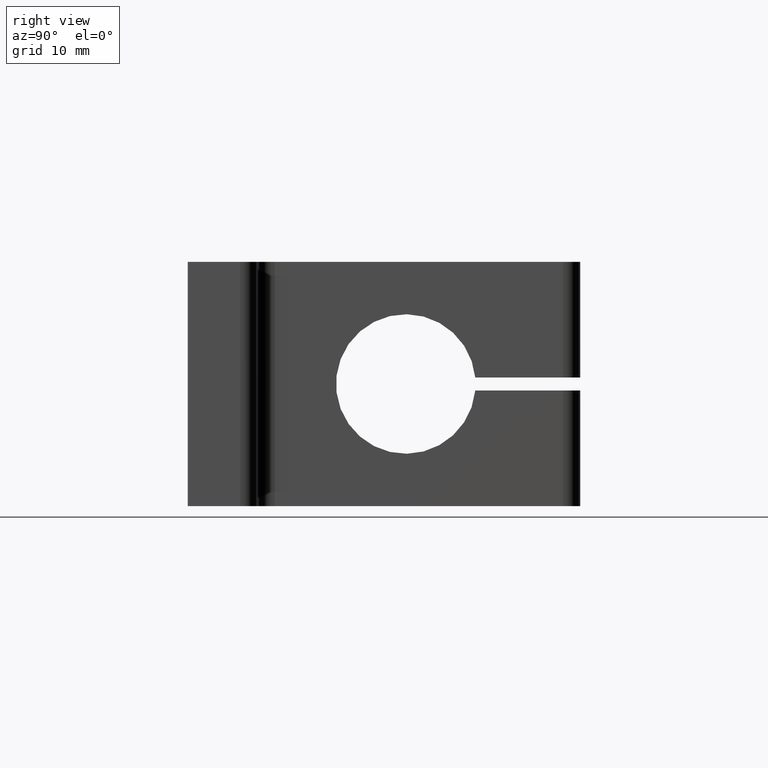
[diagram: clean part render]
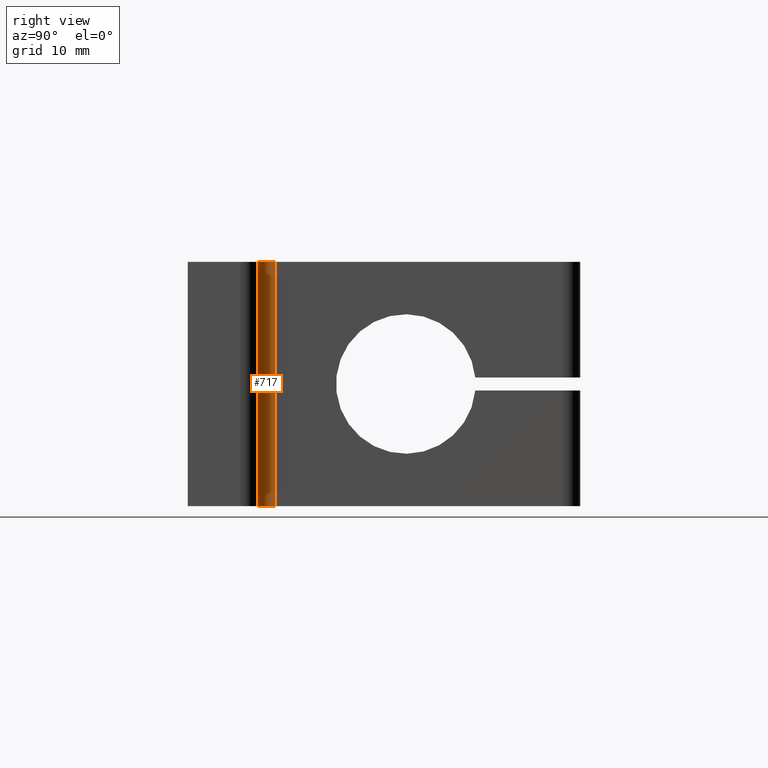
[diagram: same view with one face highlighted and labeled with its STEP entity id]
A machine part, right view. The second image highlights one B-rep face of the part: STEP entity #717.
In plain terms, the highlighted cylindrical surface (edge-blend (fillet) strip) has radius 2 mm, axis along (0, 0, -1).
Its self-contained STEP definition (entity closure, byte-faithful):
#18 = CARTESIAN_POINT ( 'NONE',  ( -17.49999999999999600, 9.999999999999987600, -28.00000000000000000 ) ) ;
#29 = DIRECTION ( 'NONE',  ( -0.0000000000000000000, 0.0000000000000000000, -1.000000000000000000 ) ) ;
#82 = DIRECTION ( 'NONE',  ( -1.000000000000000000, 0.0000000000000000000, 0.0000000000000000000 ) ) ;
#96 = CARTESIAN_POINT ( 'NONE',  ( -15.49999999999999800, 9.999999999999991100, 0.0000000000000000000 ) ) ;
#155 = CARTESIAN_POINT ( 'NONE',  ( -15.49999999999999800, 7.999999999999991100, 0.0000000000000000000 ) ) ;
#164 = DIRECTION ( 'NONE',  ( 1.000000000000000000, 0.0000000000000000000, 0.0000000000000000000 ) ) ;
#171 = CARTESIAN_POINT ( 'NONE',  ( -15.49999999999999800, 9.999999999999991100, -28.00000000000000000 ) ) ;
#189 = CARTESIAN_POINT ( 'NONE',  ( -17.49999999999999600, 9.999999999999987600, 0.0000000000000000000 ) ) ;
#252 = CARTESIAN_POINT ( 'NONE',  ( -15.49999999999999800, 7.999999999999991100, 0.0000000000000000000 ) ) ;
#262 = VERTEX_POINT ( 'NONE', #18 ) ;
#272 = DIRECTION ( 'NONE',  ( 1.000000000000000000, 0.0000000000000000000, 0.0000000000000000000 ) ) ;
#313 = DIRECTION ( 'NONE',  ( 0.0000000000000000000, 0.0000000000000000000, -1.000000000000000000 ) ) ;
#354 = VERTEX_POINT ( 'NONE', #155 ) ;
#372 = VERTEX_POINT ( 'NONE', #189 ) ;
#376 = CARTESIAN_POINT ( 'NONE',  ( -17.49999999999999600, 9.999999999999991100, -28.00000000000000000 ) ) ;
#385 = DIRECTION ( 'NONE',  ( 0.0000000000000000000, -0.0000000000000000000, 1.000000000000000000 ) ) ;
#427 = DIRECTION ( 'NONE',  ( 0.0000000000000000000, 0.0000000000000000000, 1.000000000000000000 ) ) ;
#435 = DIRECTION ( 'NONE',  ( -0.0000000000000000000, -0.0000000000000000000, -1.000000000000000000 ) ) ;
#449 = VERTEX_POINT ( 'NONE', #458 ) ;
#458 = CARTESIAN_POINT ( 'NONE',  ( -15.49999999999999800, 7.999999999999991100, -28.00000000000000000 ) ) ;
#461 = CARTESIAN_POINT ( 'NONE',  ( -15.49999999999999800, 9.999999999999991100, -28.00000000000000000 ) ) ;
#548 = EDGE_CURVE ( 'NONE', #354, #372, #869, .T. ) ;
#549 = AXIS2_PLACEMENT_3D ( 'NONE', #96, #29, #164 ) ;
#552 = AXIS2_PLACEMENT_3D ( 'NONE', #461, #385, #272 ) ;
#554 = AXIS2_PLACEMENT_3D ( 'NONE', #171, #313, #82 ) ;
#640 = EDGE_CURVE ( 'NONE', #262, #449, #886, .T. ) ;
#643 = ORIENTED_EDGE ( 'NONE', *, *, #548, .F. ) ;
#649 = ORIENTED_EDGE ( 'NONE', *, *, #640, .F. ) ;
#650 = ORIENTED_EDGE ( 'NONE', *, *, #1149, .F. ) ;
#669 = ORIENTED_EDGE ( 'NONE', *, *, #1141, .F. ) ;
#717 = ADVANCED_FACE ( 'NONE', ( #879 ), #883, .F. ) ;
#869 = CIRCLE ( 'NONE', #549, 2.000000000000000000 ) ;
#879 = FACE_OUTER_BOUND ( 'NONE', #986, .T. ) ;
#883 = CYLINDRICAL_SURFACE ( 'NONE', #554, 2.000000000000000000 ) ;
#886 = CIRCLE ( 'NONE', #552, 2.000000000000000000 ) ;
#986 = EDGE_LOOP ( 'NONE', ( #649, #650, #643, #669 ) ) ;
#1004 = LINE ( 'NONE', #252, #1023 ) ;
#1010 = LINE ( 'NONE', #376, #1035 ) ;
#1023 = VECTOR ( 'NONE', #427, 1000.000000000000000 ) ;
#1035 = VECTOR ( 'NONE', #435, 1000.000000000000000 ) ;
#1141 = EDGE_CURVE ( 'NONE', #449, #354, #1004, .T. ) ;
#1149 = EDGE_CURVE ( 'NONE', #372, #262, #1010, .T. ) ;